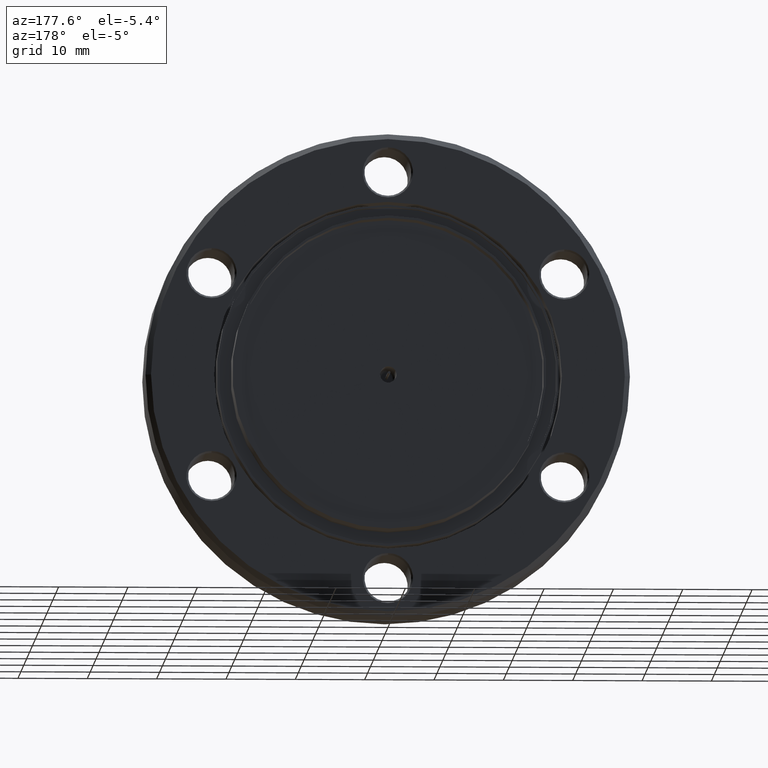
[diagram: clean part render]
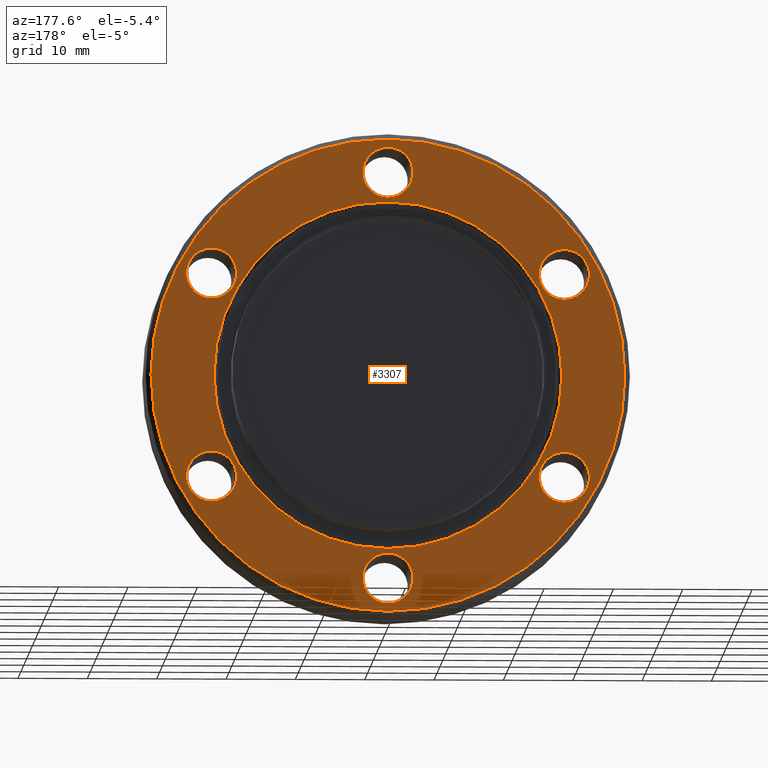
[diagram: same view with one face highlighted and labeled with its STEP entity id]
A machine part, auxiliary view. The second image highlights one B-rep face of the part: STEP entity #3307.
In plain terms, the highlighted planar face has unit normal (0, 1, 0).
Its self-contained STEP definition (entity closure, byte-faithful):
#47 = CIRCLE ( 'NONE', #209, 0.1424999999999109200 ) ;
#49 = CIRCLE ( 'NONE', #211, 0.1424999999976590500 ) ;
#57 = CIRCLE ( 'NONE', #206, 0.1425000000015125300 ) ;
#98 = CIRCLE ( 'NONE', #224, 0.9875000000000000400 ) ;
#172 = CARTESIAN_POINT ( 'NONE',  ( 1.209338714158011300E-016, -4.378112306951776800E-017, 0.9875000000000000400 ) ) ;
#195 = CARTESIAN_POINT ( 'NONE',  ( 0.0000000000000000000, -4.475859752819528900E-012, -1.013500000002693000 ) ) ;
#198 = CARTESIAN_POINT ( 'NONE',  ( -1.001125366774812600, 2.237929876409764400E-012, -0.7204999999989132300 ) ) ;
#205 = AXIS2_PLACEMENT_3D ( 'NONE', #1829, #1828, #1827 ) ;
#206 = AXIS2_PLACEMENT_3D ( 'NONE', #1859, #1858, #1857 ) ;
#208 = AXIS2_PLACEMENT_3D ( 'NONE', #1835, #1834, #1833 ) ;
#209 = AXIS2_PLACEMENT_3D ( 'NONE', #1852, #1851, #1850 ) ;
#211 = AXIS2_PLACEMENT_3D ( 'NONE', #1864, #1863, #1862 ) ;
#216 = AXIS2_PLACEMENT_3D ( 'NONE', #1901, #1900, #1899 ) ;
#224 = AXIS2_PLACEMENT_3D ( 'NONE', #1802, #1801, #1800 ) ;
#227 = CARTESIAN_POINT ( 'NONE',  ( -1.001125366774812600, 2.237929876409764400E-012, -0.4355000000010821300 ) ) ;
#277 = VERTEX_POINT ( 'NONE', #2342 ) ;
#279 = VERTEX_POINT ( 'NONE', #2340 ) ;
#517 = CARTESIAN_POINT ( 'NONE',  ( -1.001125366774808800, -2.237929876409764400E-012, 0.4355000000023457300 ) ) ;
#518 = DIRECTION ( 'NONE',  ( 0.0000000000000000000, 0.0000000000000000000, -1.000000000000000000 ) ) ;
#519 = DIRECTION ( 'NONE',  ( -0.0000000000000000000, -1.000000000000000000, -0.0000000000000000000 ) ) ;
#520 = CARTESIAN_POINT ( 'NONE',  ( 0.0000000000000000000, -4.378112306951776800E-017, 0.0000000000000000000 ) ) ;
#546 = AXIS2_PLACEMENT_3D ( 'NONE', #1944, #1945, #1946 ) ;
#641 = EDGE_LOOP ( 'NONE', ( #3068, #3067 ) ) ;
#659 = EDGE_LOOP ( 'NONE', ( #3073, #3074 ) ) ;
#660 = EDGE_LOOP ( 'NONE', ( #3075, #3076 ) ) ;
#661 = EDGE_LOOP ( 'NONE', ( #3069, #3071 ) ) ;
#665 = EDGE_LOOP ( 'NONE', ( #3086, #3077 ) ) ;
#671 = EDGE_LOOP ( 'NONE', ( #3080, #3085 ) ) ;
#675 = EDGE_LOOP ( 'NONE', ( #3079, #3078 ) ) ;
#858 = EDGE_LOOP ( 'NONE', ( #3081, #3072 ) ) ;
#1006 = EDGE_CURVE ( 'NONE', #1740, #279, #2132, .T. ) ;
#1011 = EDGE_CURVE ( 'NONE', #1727, #1722, #2147, .T. ) ;
#1012 = EDGE_CURVE ( 'NONE', #1752, #1749, #2097, .T. ) ;
#1014 = EDGE_CURVE ( 'NONE', #1754, #1753, #2105, .T. ) ;
#1015 = EDGE_CURVE ( 'NONE', #1742, #1736, #2101, .T. ) ;
#1048 = EDGE_CURVE ( 'NONE', #277, #1757, #2246, .T. ) ;
#1049 = EDGE_CURVE ( 'NONE', #1735, #1729, #2244, .T. ) ;
#1100 = EDGE_CURVE ( 'NONE', #1723, #1780, #3164, .T. ) ;
#1127 = CIRCLE ( 'NONE', #546, 0.1424999999973071400 ) ;
#1187 = AXIS2_PLACEMENT_3D ( 'NONE', #3873, #3871, #3877 ) ;
#1210 = EDGE_CURVE ( 'NONE', #1753, #1754, #2842, .T. ) ;
#1229 = EDGE_CURVE ( 'NONE', #1749, #1752, #49, .T. ) ;
#1232 = EDGE_CURVE ( 'NONE', #1736, #1742, #57, .T. ) ;
#1235 = EDGE_CURVE ( 'NONE', #1729, #1735, #47, .T. ) ;
#1285 = EDGE_CURVE ( 'NONE', #1722, #1727, #3538, .T. ) ;
#1298 = EDGE_CURVE ( 'NONE', #279, #1740, #2086, .T. ) ;
#1302 = AXIS2_PLACEMENT_3D ( 'NONE', #3037, #3036, #3035 ) ;
#1316 = AXIS2_PLACEMENT_3D ( 'NONE', #1532, #1531, #1533 ) ;
#1317 = AXIS2_PLACEMENT_3D ( 'NONE', #1506, #1507, #1508 ) ;
#1319 = AXIS2_PLACEMENT_3D ( 'NONE', #1528, #1529, #1530 ) ;
#1323 = AXIS2_PLACEMENT_3D ( 'NONE', #1503, #1502, #1504 ) ;
#1330 = AXIS2_PLACEMENT_3D ( 'NONE', #3033, #3032, #3031 ) ;
#1338 = AXIS2_PLACEMENT_3D ( 'NONE', #1591, #1554, #1561 ) ;
#1355 = AXIS2_PLACEMENT_3D ( 'NONE', #520, #519, #518 ) ;
#1357 = EDGE_CURVE ( 'NONE', #1780, #1723, #98, .T. ) ;
#1384 = EDGE_CURVE ( 'NONE', #1757, #277, #1127, .T. ) ;
#1502 = DIRECTION ( 'NONE',  ( 0.0000000000000000000, -1.000000000000000000, -0.0000000000000000000 ) ) ;
#1503 = CARTESIAN_POINT ( 'NONE',  ( 1.001125366774804600, -2.237929876409764400E-012, -0.5780000000000117300 ) ) ;
#1504 = DIRECTION ( 'NONE',  ( 0.0000000000000000000, 0.0000000000000000000, 1.000000000000000000 ) ) ;
#1506 = CARTESIAN_POINT ( 'NONE',  ( -1.001125366774808800, -2.237929876409764400E-012, 0.5780000000000048400 ) ) ;
#1507 = DIRECTION ( 'NONE',  ( 0.0000000000000000000, -1.000000000000000000, -0.0000000000000000000 ) ) ;
#1508 = DIRECTION ( 'NONE',  ( 0.0000000000000000000, 0.0000000000000000000, 1.000000000000000000 ) ) ;
#1528 = CARTESIAN_POINT ( 'NONE',  ( -1.001125366774812600, 2.237929876409764400E-012, -0.5779999999999977400 ) ) ;
#1529 = DIRECTION ( 'NONE',  ( 0.0000000000000000000, -1.000000000000000000, -0.0000000000000000000 ) ) ;
#1530 = DIRECTION ( 'NONE',  ( 0.0000000000000000000, 0.0000000000000000000, 1.000000000000000000 ) ) ;
#1531 = DIRECTION ( 'NONE',  ( 0.0000000000000000000, -1.000000000000000000, -0.0000000000000000000 ) ) ;
#1532 = CARTESIAN_POINT ( 'NONE',  ( 8.072309530884893400E-015, 0.0000000000000000000, 1.156000000000000100 ) ) ;
#1533 = DIRECTION ( 'NONE',  ( 0.0000000000000000000, 0.0000000000000000000, 1.000000000000000000 ) ) ;
#1554 = DIRECTION ( 'NONE',  ( 1.552186360036513900E-018, -1.000000000000000000, 0.0000000000000000000 ) ) ;
#1561 = DIRECTION ( 'NONE',  ( 1.000000000000000000, 1.552186360036545700E-018, 0.0000000000000000000 ) ) ;
#1591 = CARTESIAN_POINT ( 'NONE',  ( -4.656559080109503200E-020, 9.134616728814880000E-015, 0.0000000000000000000 ) ) ;
#1722 = VERTEX_POINT ( 'NONE', #2043 ) ;
#1723 = VERTEX_POINT ( 'NONE', #2044 ) ;
#1727 = VERTEX_POINT ( 'NONE', #2048 ) ;
#1729 = VERTEX_POINT ( 'NONE', #2050 ) ;
#1735 = VERTEX_POINT ( 'NONE', #2056 ) ;
#1736 = VERTEX_POINT ( 'NONE', #2057 ) ;
#1740 = VERTEX_POINT ( 'NONE', #2061 ) ;
#1742 = VERTEX_POINT ( 'NONE', #2063 ) ;
#1749 = VERTEX_POINT ( 'NONE', #2070 ) ;
#1752 = VERTEX_POINT ( 'NONE', #517 ) ;
#1753 = VERTEX_POINT ( 'NONE', #227 ) ;
#1754 = VERTEX_POINT ( 'NONE', #198 ) ;
#1757 = VERTEX_POINT ( 'NONE', #195 ) ;
#1780 = VERTEX_POINT ( 'NONE', #172 ) ;
#1800 = DIRECTION ( 'NONE',  ( 0.0000000000000000000, 0.0000000000000000000, -1.000000000000000000 ) ) ;
#1801 = DIRECTION ( 'NONE',  ( -0.0000000000000000000, -1.000000000000000000, -0.0000000000000000000 ) ) ;
#1802 = CARTESIAN_POINT ( 'NONE',  ( 0.0000000000000000000, -4.378112306951776800E-017, 0.0000000000000000000 ) ) ;
#1827 = DIRECTION ( 'NONE',  ( 1.000000000000000000, 1.552186360036545700E-018, 0.0000000000000000000 ) ) ;
#1828 = DIRECTION ( 'NONE',  ( 1.552186360036513900E-018, -1.000000000000000000, 0.0000000000000000000 ) ) ;
#1829 = CARTESIAN_POINT ( 'NONE',  ( -4.656559080109503200E-020, 9.134616728814880000E-015, 0.0000000000000000000 ) ) ;
#1833 = DIRECTION ( 'NONE',  ( 0.0000000000000000000, 0.0000000000000000000, 1.000000000000000000 ) ) ;
#1834 = DIRECTION ( 'NONE',  ( 0.0000000000000000000, -1.000000000000000000, -0.0000000000000000000 ) ) ;
#1835 = CARTESIAN_POINT ( 'NONE',  ( 1.001125366774804600, -2.237929876409764400E-012, -0.5780000000000117300 ) ) ;
#1850 = DIRECTION ( 'NONE',  ( 0.0000000000000000000, 0.0000000000000000000, 1.000000000000000000 ) ) ;
#1851 = DIRECTION ( 'NONE',  ( 0.0000000000000000000, -1.000000000000000000, -0.0000000000000000000 ) ) ;
#1852 = CARTESIAN_POINT ( 'NONE',  ( 1.001125366774816600, 0.0000000000000000000, 0.5779999999999908500 ) ) ;
#1857 = DIRECTION ( 'NONE',  ( 0.0000000000000000000, 0.0000000000000000000, 1.000000000000000000 ) ) ;
#1858 = DIRECTION ( 'NONE',  ( 0.0000000000000000000, -1.000000000000000000, -0.0000000000000000000 ) ) ;
#1859 = CARTESIAN_POINT ( 'NONE',  ( 8.072309530884893400E-015, 0.0000000000000000000, 1.156000000000000100 ) ) ;
#1862 = DIRECTION ( 'NONE',  ( 0.0000000000000000000, 0.0000000000000000000, 1.000000000000000000 ) ) ;
#1863 = DIRECTION ( 'NONE',  ( 0.0000000000000000000, -1.000000000000000000, -0.0000000000000000000 ) ) ;
#1864 = CARTESIAN_POINT ( 'NONE',  ( -1.001125366774808800, -2.237929876409764400E-012, 0.5780000000000048400 ) ) ;
#1899 = DIRECTION ( 'NONE',  ( 0.0000000000000000000, 0.0000000000000000000, 1.000000000000000000 ) ) ;
#1900 = DIRECTION ( 'NONE',  ( 0.0000000000000000000, -1.000000000000000000, -0.0000000000000000000 ) ) ;
#1901 = CARTESIAN_POINT ( 'NONE',  ( -1.001125366774812600, 2.237929876409764400E-012, -0.5779999999999977400 ) ) ;
#1944 = CARTESIAN_POINT ( 'NONE',  ( 0.0000000000000000000, -4.475859752819528900E-012, -1.156000000000000100 ) ) ;
#1945 = DIRECTION ( 'NONE',  ( 0.0000000000000000000, -1.000000000000000000, -0.0000000000000000000 ) ) ;
#1946 = DIRECTION ( 'NONE',  ( 0.0000000000000000000, 0.0000000000000000000, 1.000000000000000000 ) ) ;
#2043 = CARTESIAN_POINT ( 'NONE',  ( 1.001125366774804600, -2.237929876409764400E-012, -0.4355000000033200600 ) ) ;
#2044 = CARTESIAN_POINT ( 'NONE',  ( 0.0000000000000000000, -4.378112306951776800E-017, -0.9875000000000000400 ) ) ;
#2048 = CARTESIAN_POINT ( 'NONE',  ( 1.001125366774804600, -2.237929876409764400E-012, -0.7204999999967033300 ) ) ;
#2050 = CARTESIAN_POINT ( 'NONE',  ( 1.001125366774816600, 0.0000000000000000000, 0.7204999999999017700 ) ) ;
#2056 = CARTESIAN_POINT ( 'NONE',  ( 1.001125366774816600, 0.0000000000000000000, 0.4355000000000799300 ) ) ;
#2057 = CARTESIAN_POINT ( 'NONE',  ( 8.072309530884893400E-015, 0.0000000000000000000, 1.298500000001512800 ) ) ;
#2061 = CARTESIAN_POINT ( 'NONE',  ( -1.344999999999999100, 9.132529038160630700E-015, 1.665519646840399600E-016 ) ) ;
#2063 = CARTESIAN_POINT ( 'NONE',  ( 8.089760747772927900E-015, 0.0000000000000000000, 1.013499999998487700 ) ) ;
#2070 = CARTESIAN_POINT ( 'NONE',  ( -1.001125366774808800, -2.237929876409764400E-012, 0.7204999999976639000 ) ) ;
#2086 = CIRCLE ( 'NONE', #205, 1.344999999999999100 ) ;
#2097 = CIRCLE ( 'NONE', #1317, 0.1424999999976590500 ) ;
#2101 = CIRCLE ( 'NONE', #1316, 0.1425000000015125300 ) ;
#2105 = CIRCLE ( 'NONE', #1319, 0.1424999999989155800 ) ;
#2132 = CIRCLE ( 'NONE', #1338, 1.344999999999999100 ) ;
#2147 = CIRCLE ( 'NONE', #1323, 0.1424999999966916300 ) ;
#2244 = CIRCLE ( 'NONE', #1330, 0.1424999999999109200 ) ;
#2246 = CIRCLE ( 'NONE', #1302, 0.1424999999973071400 ) ;
#2340 = CARTESIAN_POINT ( 'NONE',  ( 1.344999999999999100, 9.136704419469129300E-015, 0.0000000000000000000 ) ) ;
#2342 = CARTESIAN_POINT ( 'NONE',  ( 1.745121688752000400E-017, -4.475859752819528900E-012, -1.298499999997307300 ) ) ;
#2747 = FACE_BOUND ( 'NONE', #671, .T. ) ;
#2751 = FACE_BOUND ( 'NONE', #858, .T. ) ;
#2753 = FACE_BOUND ( 'NONE', #675, .T. ) ;
#2755 = FACE_BOUND ( 'NONE', #659, .T. ) ;
#2757 = FACE_BOUND ( 'NONE', #665, .T. ) ;
#2758 = FACE_BOUND ( 'NONE', #660, .T. ) ;
#2759 = FACE_BOUND ( 'NONE', #661, .T. ) ;
#2760 = FACE_OUTER_BOUND ( 'NONE', #641, .T. ) ;
#2842 = CIRCLE ( 'NONE', #216, 0.1424999999989155800 ) ;
#3031 = DIRECTION ( 'NONE',  ( 0.0000000000000000000, 0.0000000000000000000, 1.000000000000000000 ) ) ;
#3032 = DIRECTION ( 'NONE',  ( 0.0000000000000000000, -1.000000000000000000, -0.0000000000000000000 ) ) ;
#3033 = CARTESIAN_POINT ( 'NONE',  ( 1.001125366774816600, 0.0000000000000000000, 0.5779999999999908500 ) ) ;
#3035 = DIRECTION ( 'NONE',  ( 0.0000000000000000000, 0.0000000000000000000, 1.000000000000000000 ) ) ;
#3036 = DIRECTION ( 'NONE',  ( 0.0000000000000000000, -1.000000000000000000, -0.0000000000000000000 ) ) ;
#3037 = CARTESIAN_POINT ( 'NONE',  ( 0.0000000000000000000, -4.475859752819528900E-012, -1.156000000000000100 ) ) ;
#3067 = ORIENTED_EDGE ( 'NONE', *, *, #1006, .F. ) ;
#3068 = ORIENTED_EDGE ( 'NONE', *, *, #1298, .F. ) ;
#3069 = ORIENTED_EDGE ( 'NONE', *, *, #1100, .T. ) ;
#3071 = ORIENTED_EDGE ( 'NONE', *, *, #1357, .T. ) ;
#3072 = ORIENTED_EDGE ( 'NONE', *, *, #1014, .T. ) ;
#3073 = ORIENTED_EDGE ( 'NONE', *, *, #1229, .T. ) ;
#3074 = ORIENTED_EDGE ( 'NONE', *, *, #1012, .T. ) ;
#3075 = ORIENTED_EDGE ( 'NONE', *, *, #1285, .T. ) ;
#3076 = ORIENTED_EDGE ( 'NONE', *, *, #1011, .T. ) ;
#3077 = ORIENTED_EDGE ( 'NONE', *, *, #1048, .T. ) ;
#3078 = ORIENTED_EDGE ( 'NONE', *, *, #1015, .T. ) ;
#3079 = ORIENTED_EDGE ( 'NONE', *, *, #1232, .T. ) ;
#3080 = ORIENTED_EDGE ( 'NONE', *, *, #1235, .T. ) ;
#3081 = ORIENTED_EDGE ( 'NONE', *, *, #1210, .T. ) ;
#3085 = ORIENTED_EDGE ( 'NONE', *, *, #1049, .T. ) ;
#3086 = ORIENTED_EDGE ( 'NONE', *, *, #1384, .T. ) ;
#3164 = CIRCLE ( 'NONE', #1355, 0.9875000000000000400 ) ;
#3307 = ADVANCED_FACE ( 'NONE', ( #2747, #2757, #2753, #2751, #2755, #2758, #2759, #2760 ), #3875, .T. ) ;
#3538 = CIRCLE ( 'NONE', #208, 0.1424999999966916300 ) ;
#3871 = DIRECTION ( 'NONE',  ( 0.0000000000000000000, 1.000000000000000000, 0.0000000000000000000 ) ) ;
#3873 = CARTESIAN_POINT ( 'NONE',  ( 1.344999999999999100, 4.554327352579290100E-015, 0.0000000000000000000 ) ) ;
#3875 = PLANE ( 'NONE',  #1187 ) ;
#3877 = DIRECTION ( 'NONE',  ( 0.0000000000000000000, -0.0000000000000000000, 1.000000000000000000 ) ) ;